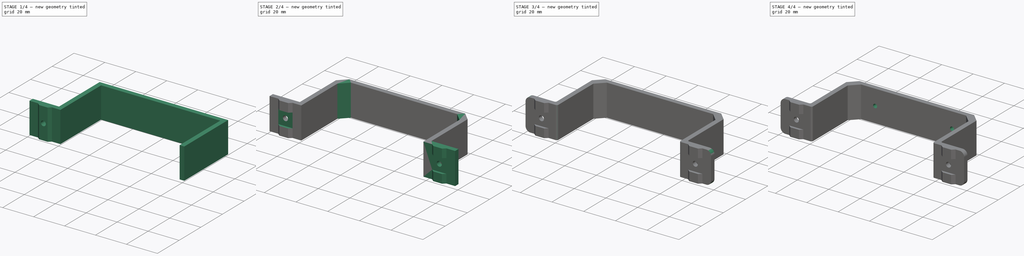
[diagram: build sequence overview — one tinted view per stage of 4, left to right]
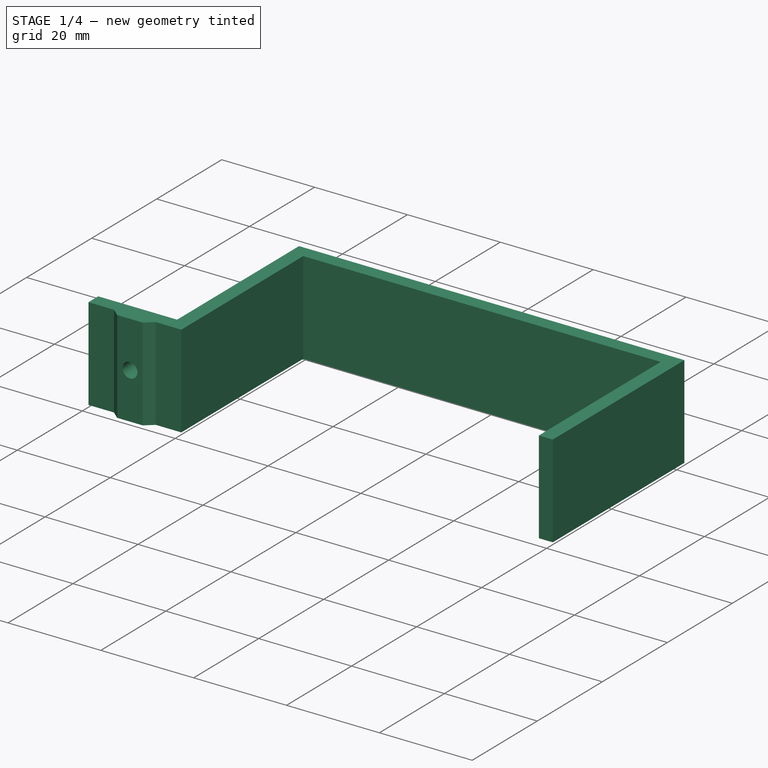
[diagram: stage 1 of 4 — iso view after this stage's code; geometry added in this stage tinted green]
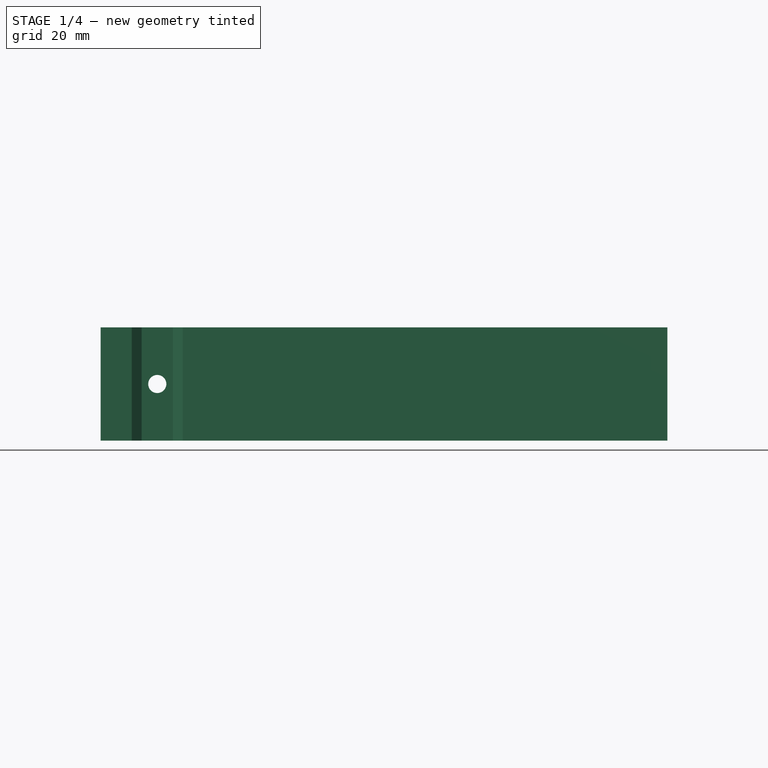
[diagram: stage 1 of 4 — front view after this stage's code; geometry added in this stage tinted green]
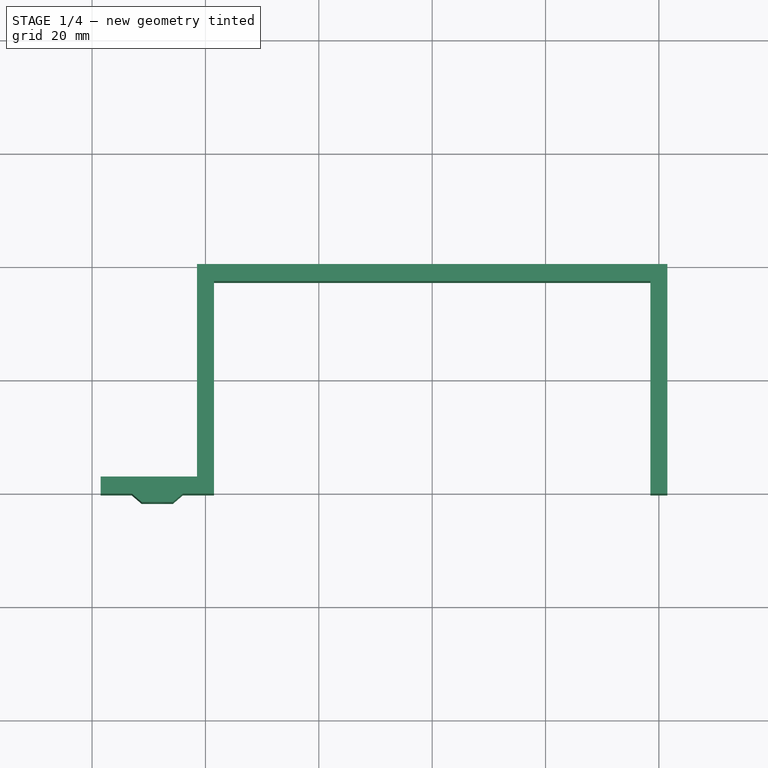
[diagram: stage 1 of 4 — top view after this stage's code; geometry added in this stage tinted green]
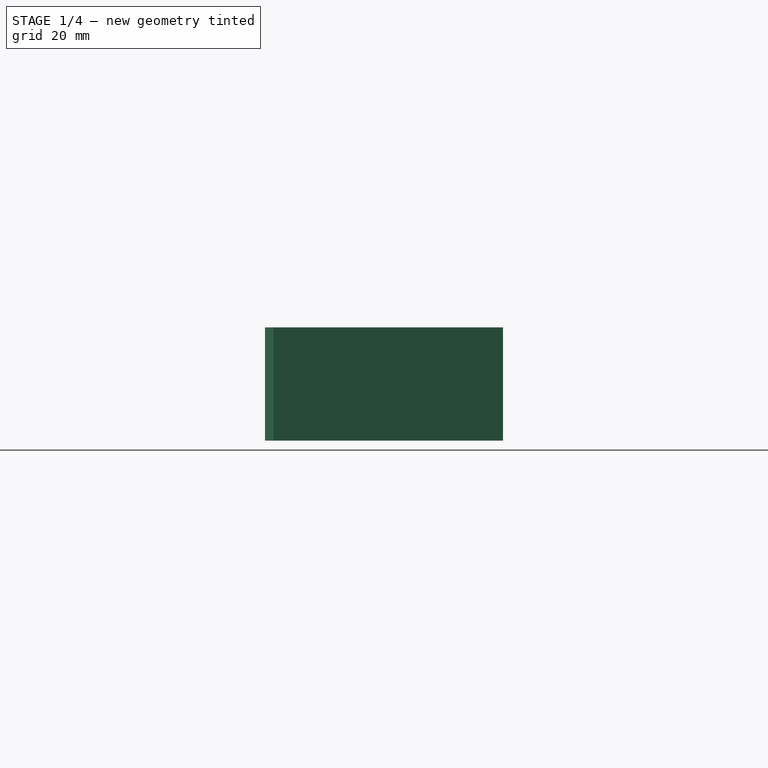
[diagram: stage 1 of 4 — right view after this stage's code; geometry added in this stage tinted green]
FCSTD DOCUMENT  (FreeCAD 1.1R44874 (Git))
Label: carco-de-encaixe-V2
License: All rights reserved
LicenseURL: https://en.wikipedia.org/wiki/All_rights_reserved
objects: Sketcher::SketchObject×6, PartDesign::Pad×3, PartDesign::Pocket×3, PartDesign::Chamfer×2, PartDesign::Fillet×2, PartDesign::Mirrored×1, PartDesign::Body×1, App::Point×1
note: 45 computed .brp shape members not serialized (recipe doc carries the construction recipe); baked Part::Feature solids carry a one-line shape summary decoded from their .brp

FEATURE [Sketcher::SketchObject] Sketch
  ArcFitTolerance = 0
  AttachmentSupport = -> [XY_Plane]
  ExternalTypes = [0]
  FullyConstrained = true
  MakeInternals = false
  MapMode = 5
  _ExternalGeoVersion = 0
  sketch-geometry (9):
    g0: LineSegment StartX=-41.5 StartY=-20.25 StartZ=0 EndX=-41.5 EndY=20.25 EndZ=0
    g1: LineSegment StartX=-41.5 StartY=20.25 StartZ=0 EndX=41.5 EndY=20.25 EndZ=0
    g2: LineSegment StartX=41.5 StartY=20.25 StartZ=0 EndX=41.5 EndY=-20.25 EndZ=0
    g3: LineSegment StartX=41.5 StartY=-20.25 StartZ=0 EndX=38.5 EndY=-20.25 EndZ=0
    g4: LineSegment StartX=38.5 StartY=-20.25 StartZ=0 EndX=38.5 EndY=17.25 EndZ=0
    g5: LineSegment StartX=38.5 StartY=17.25 StartZ=0 EndX=-38.5 EndY=17.25 EndZ=0
    g6: LineSegment StartX=-38.5 StartY=17.25 StartZ=0 EndX=-38.5 EndY=-20.25 EndZ=0
    g7: LineSegment StartX=-38.5 StartY=-20.25 StartZ=0 EndX=-41.5 EndY=-20.25 EndZ=0
    g8: LineSegment [constr] StartX=-38.5 StartY=17.25 StartZ=0 EndX=-38.5 EndY=20.25 EndZ=0
  constraints (25):
    c: Coincident(g0,g1)
    c: Coincident(g1,g2)
    c: Coincident(g2,g3)
    c: Coincident(g3,g4)
    c: Coincident(g4,g5)
    c: Horizontal(g5)
    c: Coincident(g5,g6)
    c: Coincident(g6,g7)
    c: Coincident(g7,g0)
    c: Horizontal(g7)
    c: Vertical(g6)
    c: Vertical(g4)
    c: Vertical(g2)
    c: Symmetric(g1,g0,g-2)
    c: Symmetric(g0,g0,g-1)
    c: Horizontal(g3)
    c: Coincident(g8,g5)
    c: PointOnObject(g8,g1)
    c: Vertical(g8)
    c: Equal(g3,g7)
    c: Equal(g7,g8)
    c: Equal(g2,g0)
    c: DistanceY(g8,g8) = 3
    c: DistanceY(g6,g5) = 37.5
    c: Distance(g6,g3) = 77
FEATURE [PartDesign::Pad] Pad
  Direction = (0,0,1)
  Length = 20
  Length2 = 10
  Profile = -> Sketch
  ReferenceAxis = -> Sketch [N_Axis]
  SideType = 0
  Suppressed = false
  Type = 0
  Type2 = 0
FEATURE [Sketcher::SketchObject] Sketch001
  ArcFitTolerance = 1e-06
  AttachmentSupport = -> [Pad]
  ExternalGeometry = -> [Sketch]
  ExternalTypes = [0]
  FullyConstrained = true
  MakeInternals = false
  MapMode = 5
  Placement = pos=(0,0,0) rot=(1,0,0;3.14159rad)
  _ExternalGeoVersion = 0
  sketch-geometry (11):
    g0: LineSegment [constr] StartX=-41.5 StartY=20.25 StartZ=0 EndX=-58.5 EndY=20.25 EndZ=0
    g1: LineSegment StartX=-58.5 StartY=20.25 StartZ=0 EndX=-58.5 EndY=17.25 EndZ=0
    g2: LineSegment StartX=-58.5 StartY=17.25 StartZ=0 EndX=-41.5 EndY=17.25 EndZ=0
    g3: LineSegment StartX=-41.5 StartY=17.25 StartZ=0 EndX=-41.5 EndY=20.25 EndZ=0
    g4: LineSegment StartX=-58.5 StartY=20.25 StartZ=0 EndX=-53 EndY=20.25 EndZ=0
    g5: LineSegment StartX=-53 StartY=20.25 StartZ=0 EndX=-51.25 EndY=21.75 EndZ=0
    g6: LineSegment StartX=-51.25 StartY=21.75 StartZ=0 EndX=-45.75 EndY=21.75 EndZ=0
    g7: LineSegment StartX=-45.75 StartY=21.75 StartZ=0 EndX=-44 EndY=20.25 EndZ=0
    g8: LineSegment [constr] StartX=-44 StartY=20.25 StartZ=0 EndX=-38.5 EndY=20.25 EndZ=0
    g9: LineSegment [constr] StartX=-48.5 StartY=21.75 StartZ=0 EndX=-48.5 EndY=17.25 EndZ=0
    g10: LineSegment StartX=-44 StartY=20.25 StartZ=0 EndX=-41.5 EndY=20.25 EndZ=0
  constraints (29):
    c: Coincident(g0,g1)
    c: Coincident(g1,g2)
    c: Coincident(g2,g3)
    c: Coincident(g3,g0)
    c: Horizontal(g0)
    c: Horizontal(g2)
    c: Vertical(g1)
    c: Vertical(g3)
    c: Coincident(g0,g-3)
    c: Equal(g-4,g1)
    c: Distance(g-4,g0) = 20
    c: Coincident(g4,g0)
    c: Coincident(g4,g5)
    c: Coincident(g5,g6)
    c: Coincident(g6,g7)
    c: Coincident(g7,g8)
    c: Coincident(g8,g-4)
    c: Equal(g8,g4)
    c: Horizontal(g4)
    c: Horizontal(g8)
    c: PointOnObject(g9,g2)
    c: PointOnObject(g9,g6)
    c: Symmetric(g5,g6,g9)
    c: Symmetric(g0,g8,g9)
    c: Distance(g4,g7) = 9
    c: DistanceX(g6,g6) = 5.5
    c: DistanceY(g4,g5) = 1.5
    c: Coincident(g10,g7)
    c: Coincident(g10,g0)
FEATURE [PartDesign::Pad] Pad001
  BaseFeature = -> Pad
  Direction = (0,0,-1)
  Length = 10
  Length2 = 10
  Profile = -> Sketch001
  ReferenceAxis = -> Sketch001 [N_Axis]
  Refine = true
  SideType = 0
  Suppressed = false
  Type = 3
  Type2 = 0
  UpToFace = -> Pad [Face10]
FEATURE [Sketcher::SketchObject] Sketch002
  ArcFitTolerance = 1e-06
  AttachmentSupport = -> [Pad001]
  ExternalGeometry = -> [Pad001]
  ExternalTypes = [0]
  FullyConstrained = true
  MakeInternals = false
  MapMode = 5
  Placement = pos=(-2.02099e-09,-21.75,0) rot=(1,0,0;1.5708rad)
  _ExternalGeoVersion = 0
  sketch-geometry (3):
    g0: LineSegment [constr] StartX=-51.25 StartY=10 StartZ=0 EndX=-45.75 EndY=10 EndZ=0
    g1: LineSegment [constr] StartX=-48.5 StartY=20 StartZ=0 EndX=-48.5 EndY=0 EndZ=0
    g2: Circle CenterX=-48.5 CenterY=10 CenterZ=0 NormalX=0 NormalY=0 NormalZ=1 AngleXU=0 Radius=1.6
  constraints (8):
    c: Symmetric(g-3,g-3,g0)
    c: Symmetric(g0,g0,g1)
    c: PointOnObject(g0,g-3)
    c: PointOnObject(g0,g-4)
    c: Horizontal(g-3,g1)
    c: Horizontal(g1,g-3)
    c: Symmetric(g1,g1,g2)
    c: Diameter(g2) = 3.2
FEATURE [PartDesign::Pocket] Pocket
  BaseFeature = -> Pad001
  Direction = (9.2919e-11,1,-2e-16)
  Length = 5
  Length2 = 5
  Profile = -> Sketch002
  ReferenceAxis = -> Sketch002 [N_Axis]
  Refine = true
  SideType = 0
  Suppressed = false
  Type = 1
  Type2 = 0
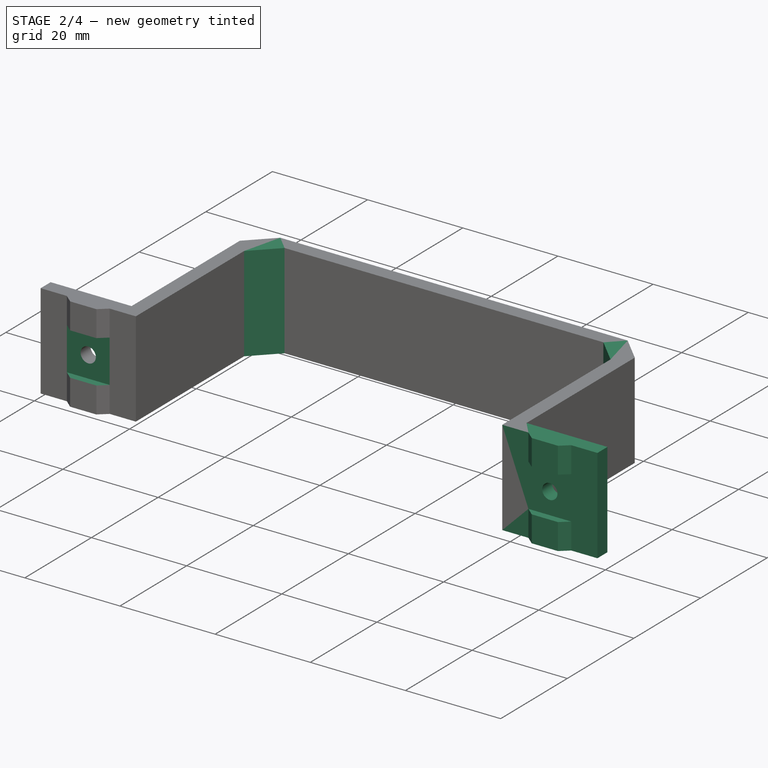
[diagram: stage 2 of 4 — iso view after this stage's code; geometry added in this stage tinted green]
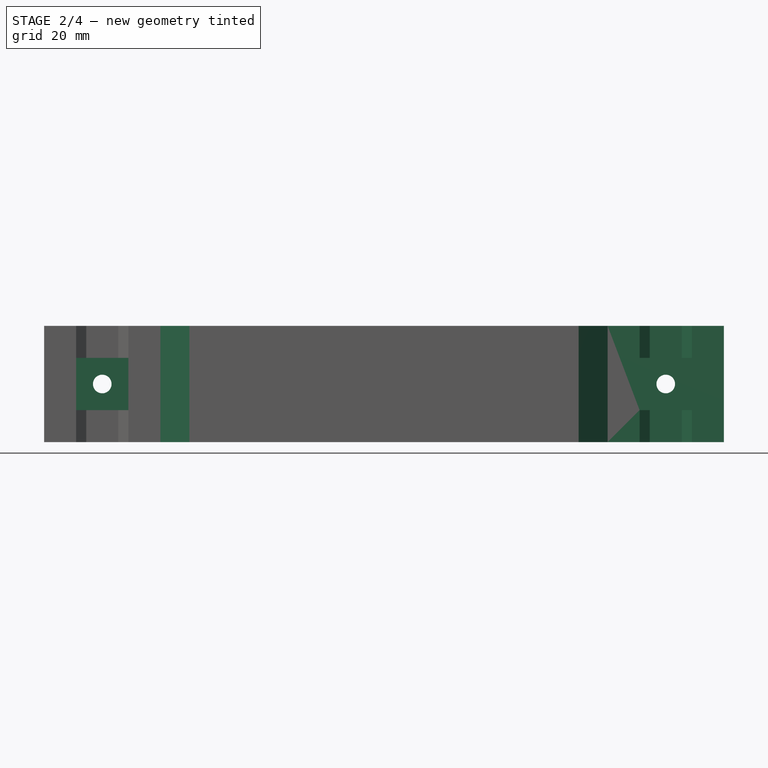
[diagram: stage 2 of 4 — front view after this stage's code; geometry added in this stage tinted green]
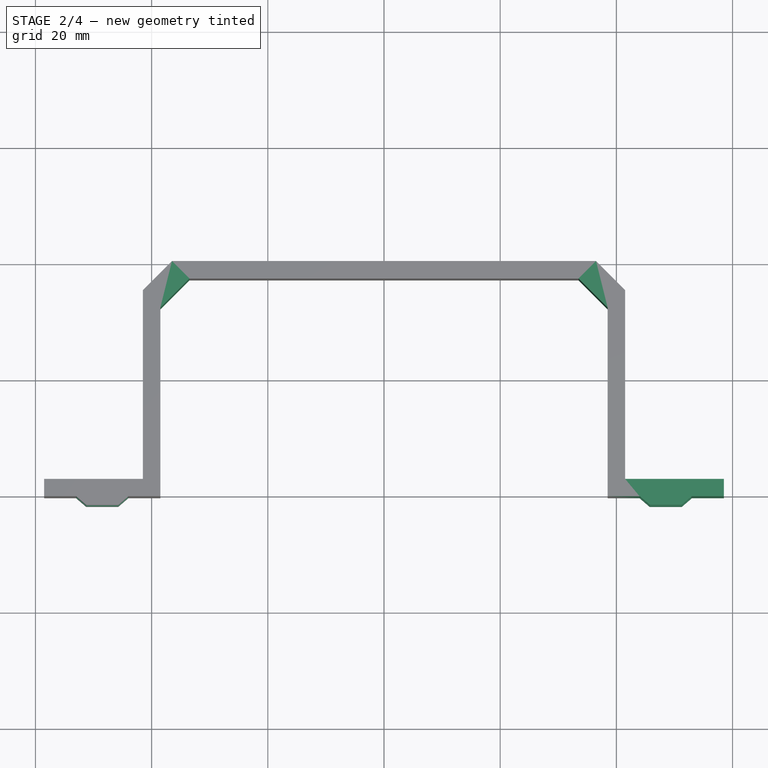
[diagram: stage 2 of 4 — top view after this stage's code; geometry added in this stage tinted green]
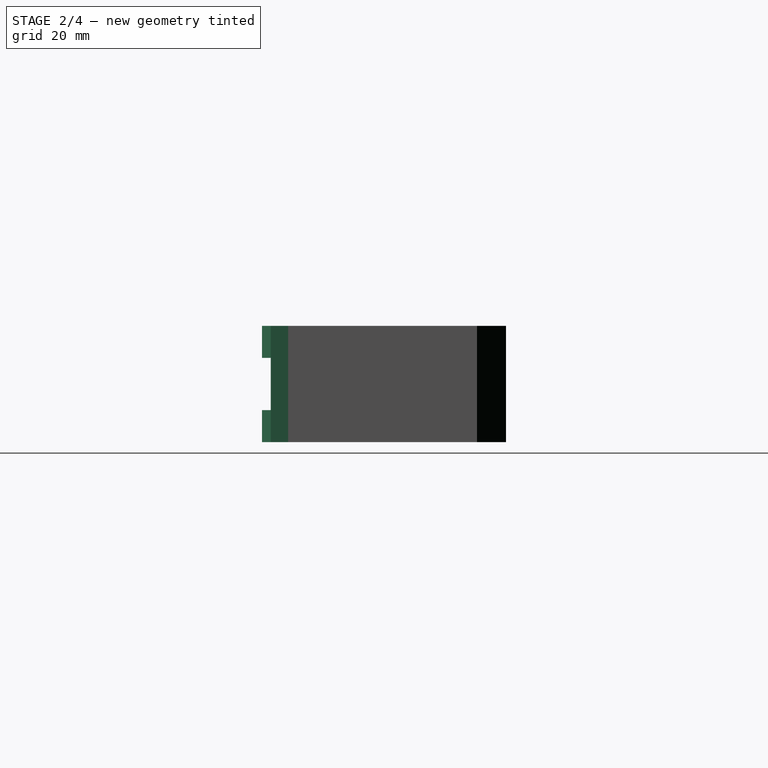
[diagram: stage 2 of 4 — right view after this stage's code; geometry added in this stage tinted green]
FEATURE [Sketcher::SketchObject] Sketch003
  ArcFitTolerance = 1e-06
  AttachmentSupport = -> [Pocket]
  ExternalGeometry = -> [Pocket]
  ExternalTypes = [0]
  FullyConstrained = true
  MakeInternals = false
  MapMode = 5
  Placement = pos=(-2.02099e-09,-21.75,0) rot=(1,0,0;1.5708rad)
  _ExternalGeoVersion = 0
  sketch-geometry (5):
    g0: Circle [constr] CenterX=-48.5 CenterY=10 CenterZ=0 NormalX=0 NormalY=0 NormalZ=1 AngleXU=0 Radius=4.5
    g1: LineSegment StartX=-53 StartY=14.5 StartZ=0 EndX=-53 EndY=5.5 EndZ=0
    g2: LineSegment StartX=-53 StartY=5.5 StartZ=0 EndX=-44 EndY=5.5 EndZ=0
    g3: LineSegment StartX=-44 StartY=5.5 StartZ=0 EndX=-44 EndY=14.5 EndZ=0
    g4: LineSegment StartX=-44 StartY=14.5 StartZ=0 EndX=-53 EndY=14.5 EndZ=0
  constraints (14):
    c: Coincident(g0,g-3)
    c: Tangent(g-4,g0)
    c: Coincident(g1,g2)
    c: Coincident(g2,g3)
    c: Coincident(g3,g4)
    c: Coincident(g4,g1)
    c: Vertical(g1)
    c: Vertical(g3)
    c: Horizontal(g2)
    c: Horizontal(g4)
    c: Tangent(g0,g1)
    c: Tangent(g4,g0)
    c: Tangent(g3,g0)
    c: Tangent(g2,g0)
FEATURE [PartDesign::Pocket] Pocket001
  BaseFeature = -> Pocket
  Direction = (9.2919e-11,1,-2e-16)
  Length = 0
  Length2 = 5
  Profile = -> Sketch003
  ReferenceAxis = -> Sketch003 [N_Axis]
  Refine = true
  SideType = 0
  Suppressed = false
  Type = 3
  Type2 = 0
  UpToFace = -> Pocket [Face3]
FEATURE [PartDesign::Mirrored] Mirrored
  BaseFeature = -> Pocket001
  MirrorPlane = -> Sketch001 [V_Axis]
  Originals = -> [Pad001,Pocket,Pocket001]
  Refine = true
  Suppressed = false
  TransformMode = 0
FEATURE [PartDesign::Chamfer] Chamfer
  Angle = 45
  Base = -> Mirrored [Edge41,Edge2,Edge39,Edge5]
  BaseFeature = -> Mirrored
  ChamferType = 0
  FlipDirection = false
  Refine = true
  Size = 5
  Size2 = 1
  SupportTransform = false
  Suppressed = false
  UseAllEdges = false
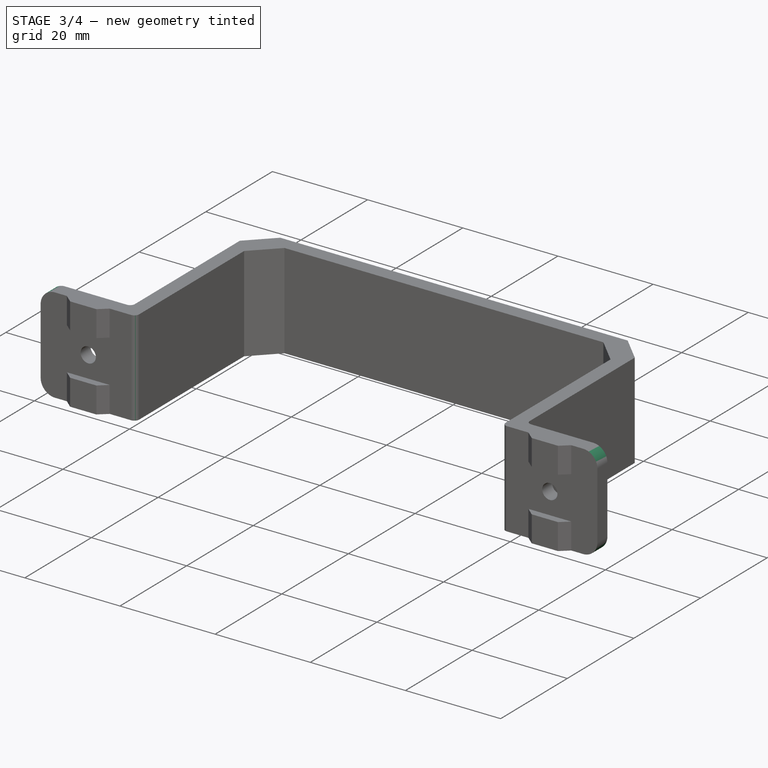
[diagram: stage 3 of 4 — iso view after this stage's code; geometry added in this stage tinted green]
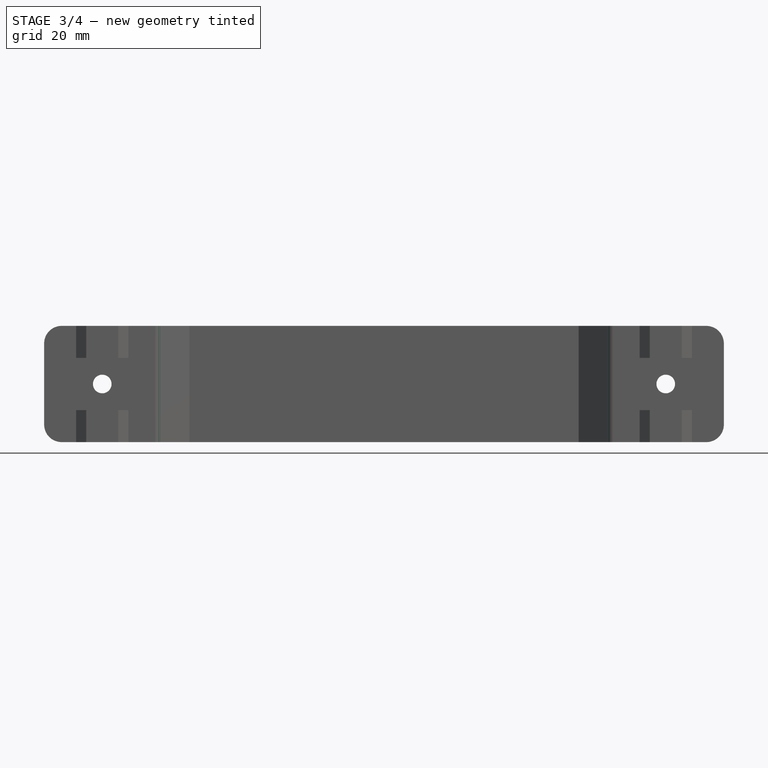
[diagram: stage 3 of 4 — front view after this stage's code; geometry added in this stage tinted green]
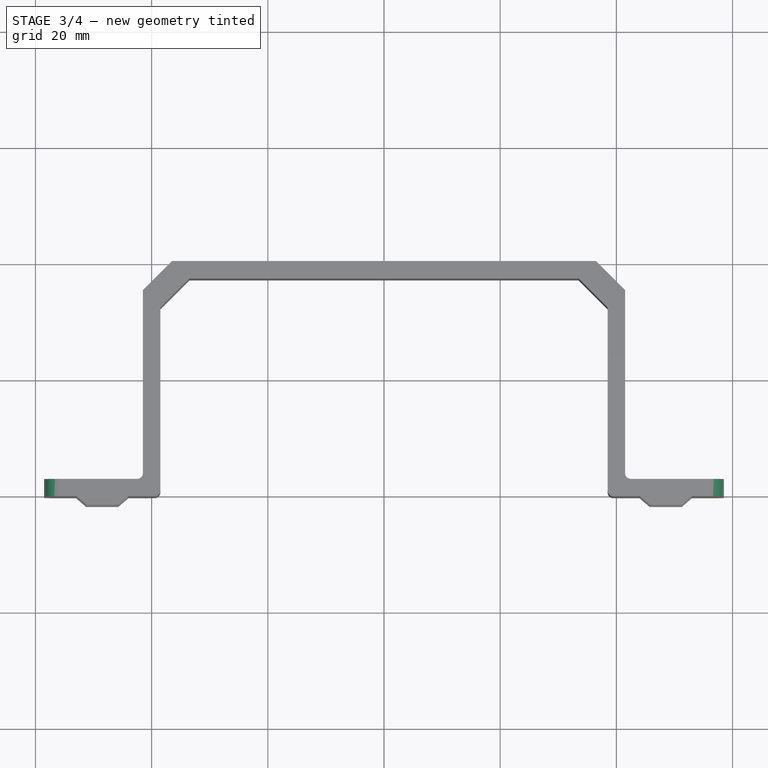
[diagram: stage 3 of 4 — top view after this stage's code; geometry added in this stage tinted green]
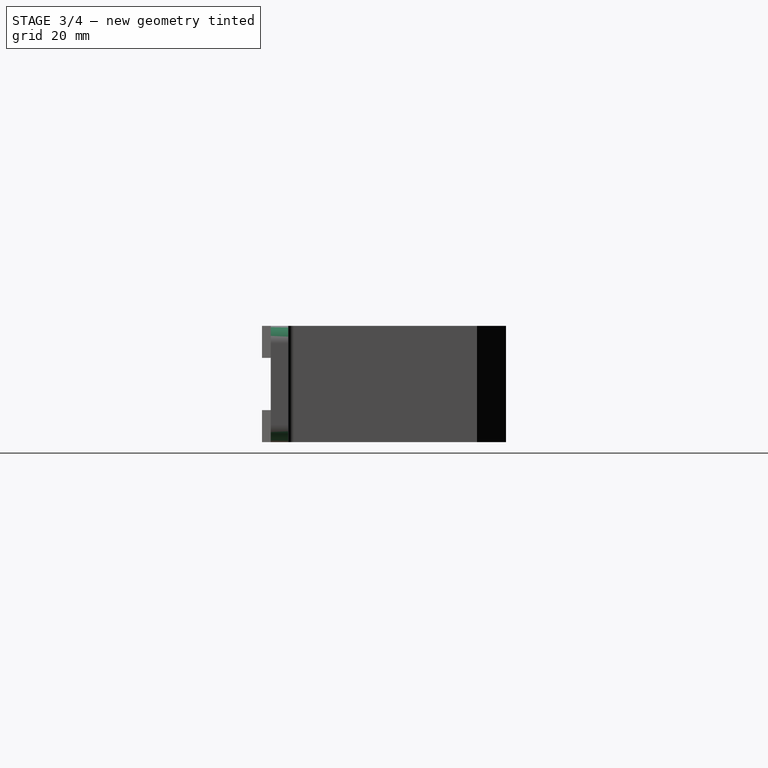
[diagram: stage 3 of 4 — right view after this stage's code; geometry added in this stage tinted green]
FEATURE [PartDesign::Fillet] Fillet
  Base = -> Chamfer [Edge3,Edge68,Edge61,Edge76]
  BaseFeature = -> Chamfer
  Radius = 1
  Refine = true
  SupportTransform = false
  Suppressed = false
  UseAllEdges = false
FEATURE [PartDesign::Fillet] Fillet001
  Base = -> Fillet [Edge19,Edge50,Edge10,Edge41]
  BaseFeature = -> Fillet
  Radius = 3
  Refine = true
  SupportTransform = false
  Suppressed = false
  UseAllEdges = false
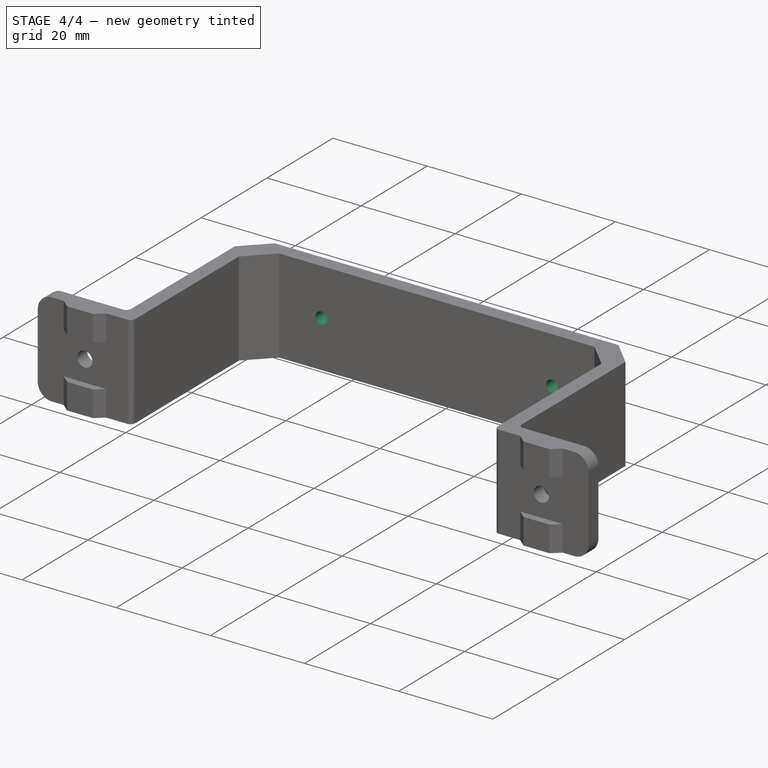
[diagram: stage 4 of 4 — iso view after this stage's code; geometry added in this stage tinted green]
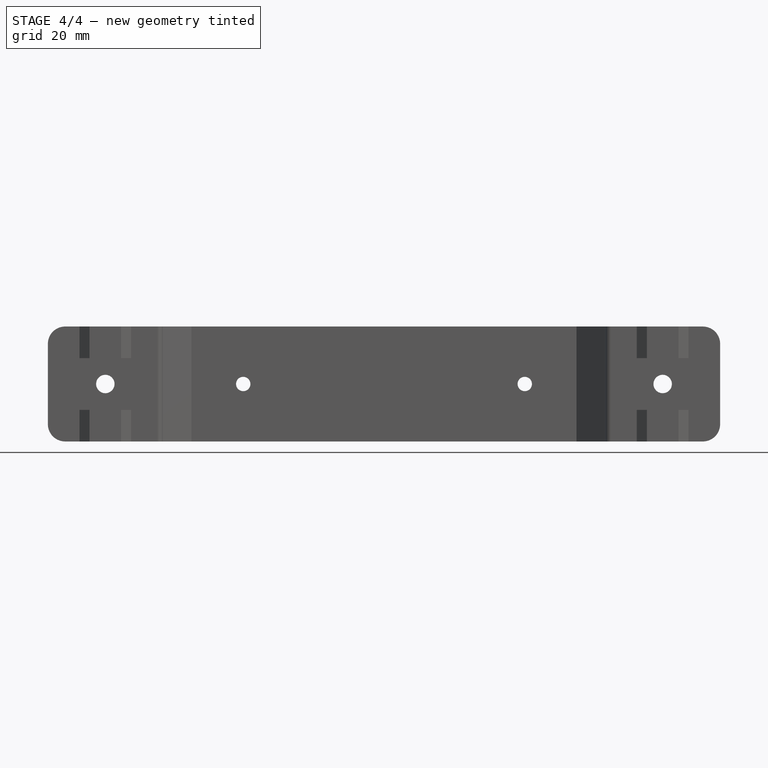
[diagram: stage 4 of 4 — front view after this stage's code; geometry added in this stage tinted green]
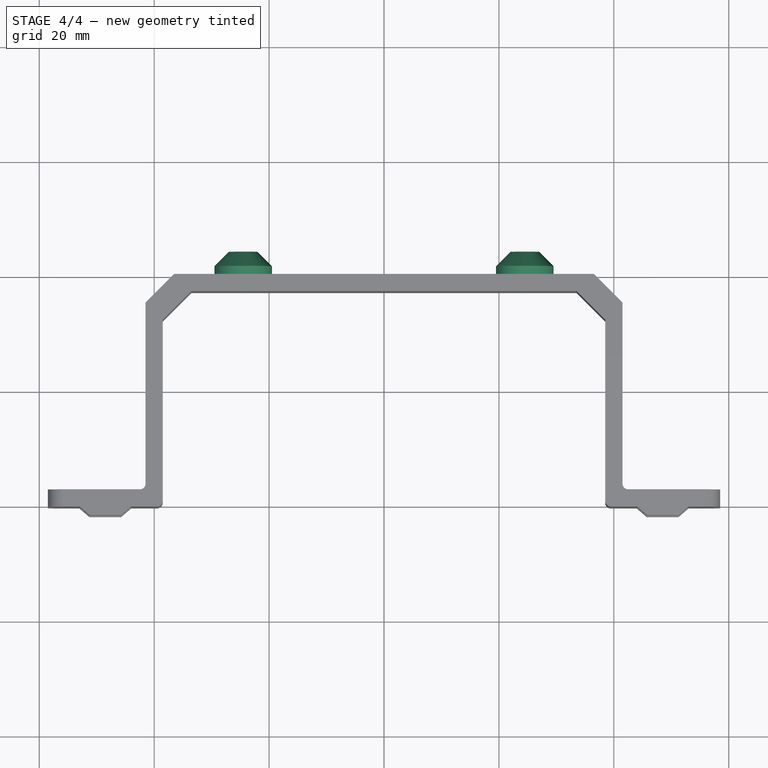
[diagram: stage 4 of 4 — top view after this stage's code; geometry added in this stage tinted green]
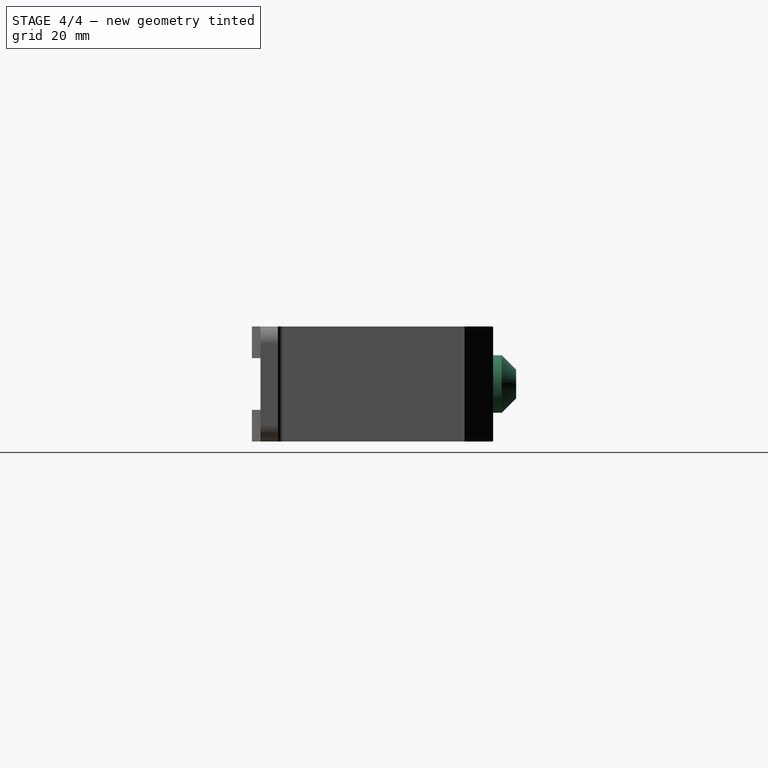
[diagram: stage 4 of 4 — right view after this stage's code; geometry added in this stage tinted green]
FEATURE [Sketcher::SketchObject] Sketch004
  ArcFitTolerance = 1e-06
  AttachmentSupport = -> [Fillet001]
  ExternalGeometry = -> [Fillet001]
  ExternalTypes = [0]
  FullyConstrained = true
  MakeInternals = false
  MapMode = 5
  Placement = pos=(0,20.25,0) rot=(0,0.707107,0.707107;3.14159rad)
  _ExternalGeoVersion = 0
  sketch-geometry (5):
    g0: LineSegment [constr] StartX=-48.5 StartY=10 StartZ=0 EndX=48.5 EndY=10 EndZ=0
    g1: Circle CenterX=-24.5 CenterY=10 CenterZ=0 NormalX=0 NormalY=0 NormalZ=1 AngleXU=0 Radius=1.25
    g2: Circle CenterX=24.5 CenterY=10 CenterZ=0 NormalX=0 NormalY=0 NormalZ=1 AngleXU=0 Radius=1.25
    g3: Circle CenterX=-24.5 CenterY=10 CenterZ=0 NormalX=0 NormalY=0 NormalZ=1 AngleXU=0 Radius=5
    g4: Circle CenterX=24.5 CenterY=10 CenterZ=0 NormalX=0 NormalY=0 NormalZ=1 AngleXU=0 Radius=5
  constraints (11):
    c: Coincident(g0,g-3)
    c: Coincident(g0,g-4)
    c: Symmetric(g1,g2,g-2)
    c: PointOnObject(g1,g0)
    c: Diameter(g1) = 2.5
    c: Equal(g1,g2)
    c: Distance(g1,g2) = 49
    c: Coincident(g3,g1)
    c: Coincident(g4,g2)
    c: Equal(g4,g3)
    c: Diameter(g4) = 10
FEATURE [PartDesign::Pad] Pad002
  BaseFeature = -> Fillet001
  Direction = (0,1,-2e-16)
  Length = 4
  Length2 = 10
  Profile = -> Sketch004
  ReferenceAxis = -> Sketch004 [N_Axis]
  Refine = true
  SideType = 0
  Suppressed = false
  Type = 0
  Type2 = 0
FEATURE [Sketcher::SketchObject] Sketch005
  ArcFitTolerance = 1e-06
  AttachmentSupport = -> [Pad002]
  ExternalGeometry = -> [Pad002]
  ExternalTypes = [0]
  FullyConstrained = true
  MakeInternals = false
  MapMode = 5
  Placement = pos=(0,24.25,-9.7e-15) rot=(0,0.707107,0.707107;3.14159rad)
  _ExternalGeoVersion = 0
  sketch-geometry (2):
    g0: Circle CenterX=24.5 CenterY=10 CenterZ=0 NormalX=0 NormalY=0 NormalZ=1 AngleXU=0 Radius=1.25
    g1: Circle CenterX=-24.5 CenterY=10 CenterZ=0 NormalX=0 NormalY=0 NormalZ=1 AngleXU=0 Radius=1.25
  constraints (4):
    c: Coincident(g0,g-3)
    c: Coincident(g1,g-4)
    c: Equal(g0,g-3)
    c: Equal(g-3,g1)
FEATURE [PartDesign::Pocket] Pocket002
  BaseFeature = -> Pad002
  Direction = (0,-1,2e-16)
  Length = 5
  Length2 = 5
  Profile = -> Sketch005
  ReferenceAxis = -> Sketch005 [N_Axis]
  Refine = true
  SideType = 0
  Suppressed = false
  Type = 1
  Type2 = 0
FEATURE [PartDesign::Chamfer] Chamfer001
  Angle = 45
  Base = -> Pocket002 [Edge127,Edge125]
  BaseFeature = -> Pocket002
  ChamferType = 0
  FlipDirection = false
  Refine = true
  Size = 2.5
  Size2 = 1
  SupportTransform = false
  Suppressed = false
  UseAllEdges = false
FEATURE [PartDesign::Body] Body
  AllowCompound = false
  Group = -> [Sketch,Pad,Sketch001,Pad001,Sketch002,Pocket,Sketch003,Pocket001,Mirrored,Chamfer,Fillet,Fillet001,Sketch004,Pad002,Sketch005,Pocket002,Chamfer001]
  Origin = -> Origin
  Tip = -> Chamfer001
FEATURE [App::Point] Origin001  label="Origem"
  Role = Origin
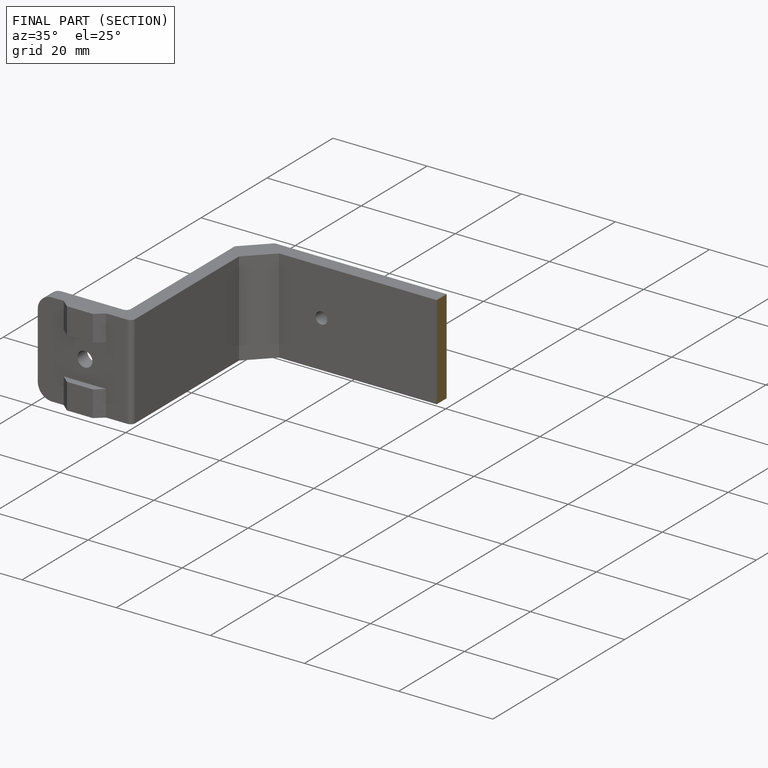
[diagram: finished part — half-section view (interior)]
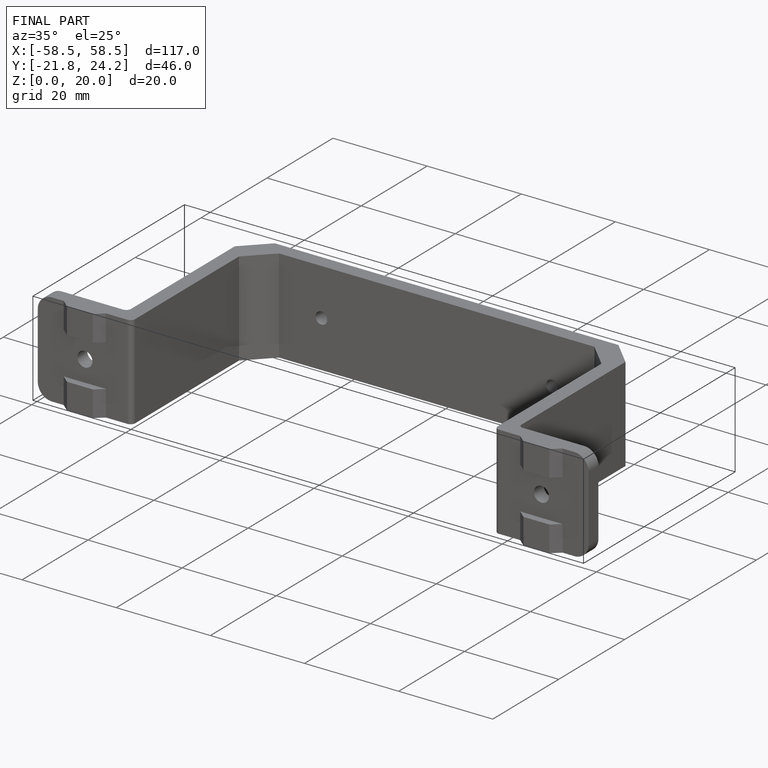
[diagram: finished part — iso view with bounding-box wireframe]
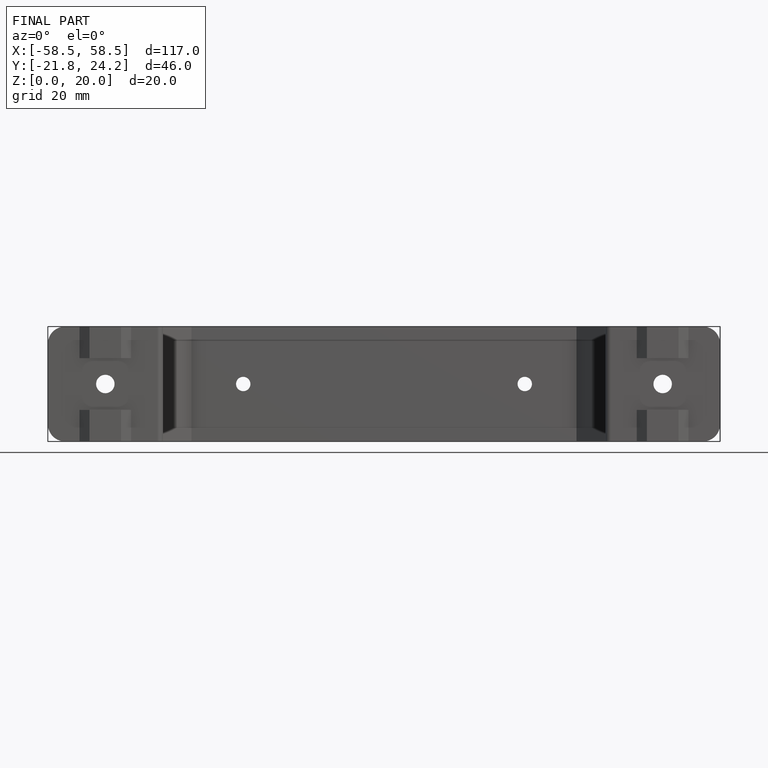
[diagram: finished part — front view with bounding-box wireframe]
